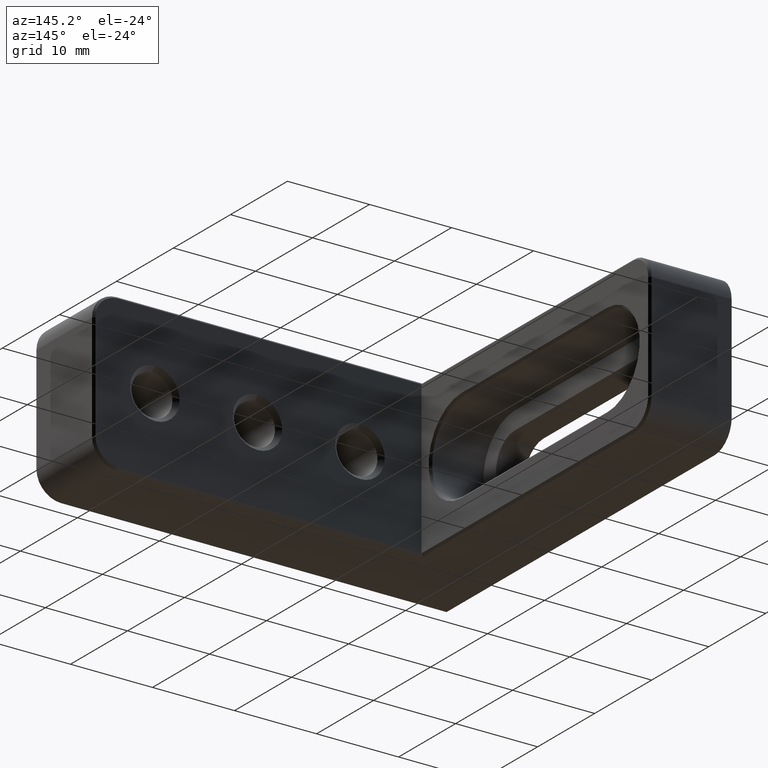
[diagram: clean part render]
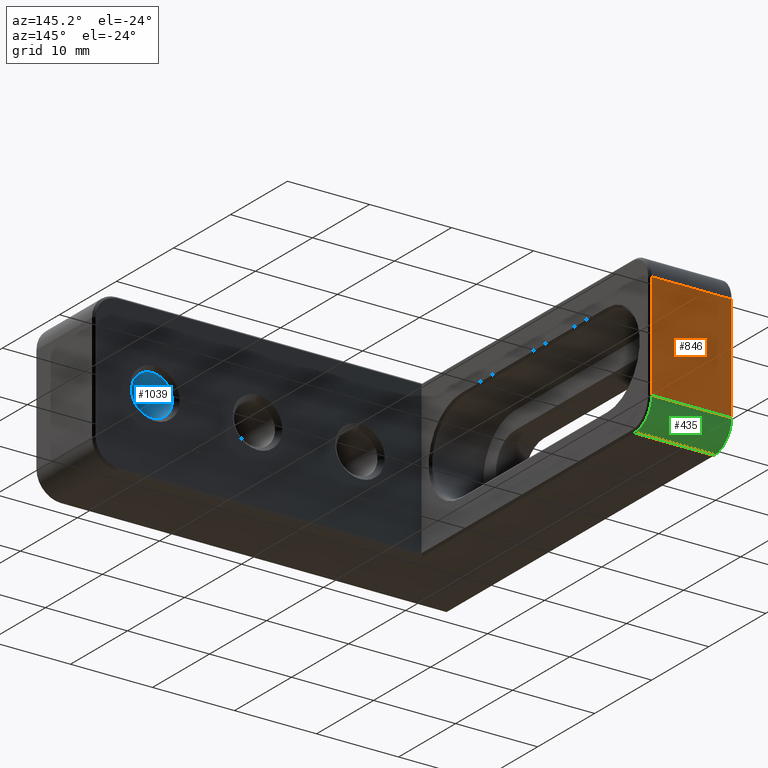
[diagram: same view with three faces highlighted in distinct colors, each labeled with its STEP entity id]
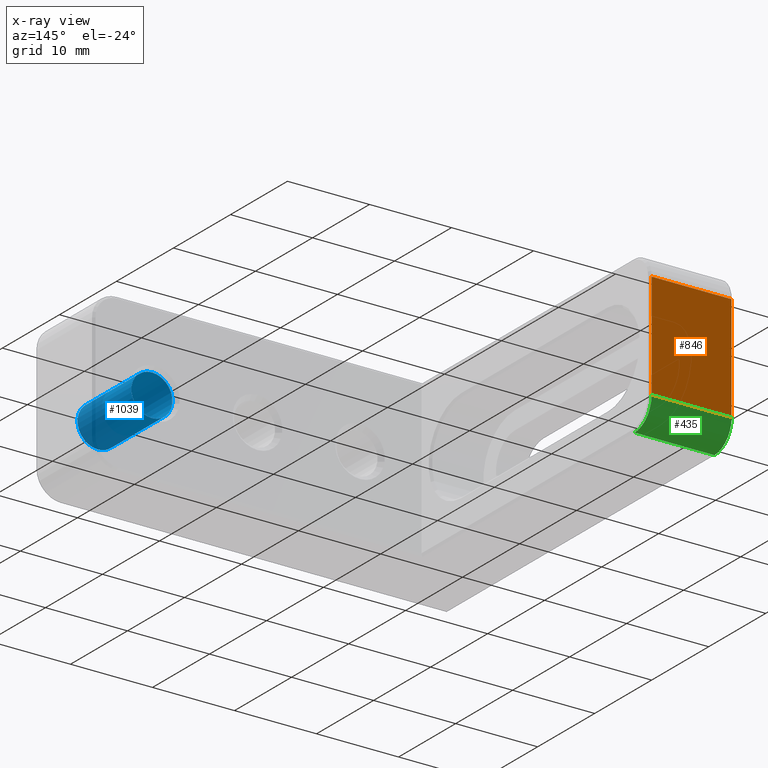
[diagram: x-ray of the same camera — body ghosted, the three highlighted faces saturated]
A machine part, auxiliary view with three faces highlighted in distinct colors.
The next image is the same camera in x-ray (body ghosted, the three faces saturated) — at least one of them is partly hidden behind the body in this view.
Their STEP definitions:

[orange] entity #846 — the highlighted planar face has unit normal (0, 1, 0).
#34 = LINE ( 'NONE', #981, #333 ) ;
#41 = EDGE_CURVE ( 'NONE', #928, #63, #167, .T. ) ;
#48 = CARTESIAN_POINT ( 'NONE',  ( -24.99999999999999289, 50.00000000000000000, 6.500000000000005329 ) ) ;
#63 = VERTEX_POINT ( 'NONE', #48 ) ;
#64 = LINE ( 'NONE', #444, #224 ) ;
#162 = EDGE_CURVE ( 'NONE', #63, #735, #34, .T. ) ;
#165 = VERTEX_POINT ( 'NONE', #1081 ) ;
#167 = LINE ( 'NONE', #272, #952 ) ;
#186 = CARTESIAN_POINT ( 'NONE',  ( -24.99999999999999289, 50.00000000000000000, -6.499999999999998224 ) ) ;
#224 = VECTOR ( 'NONE', #612, 1000.000000000000000 ) ;
#272 = CARTESIAN_POINT ( 'NONE',  ( -24.99999999999999289, 50.00000000000000000, -9.499999999999998224 ) ) ;
#275 = ORIENTED_EDGE ( 'NONE', *, *, #664, .T. ) ;
#288 = CARTESIAN_POINT ( 'NONE',  ( -24.99999999999999289, 50.00000000000000000, -6.499999999999998224 ) ) ;
#333 = VECTOR ( 'NONE', #1068, 1000.000000000000000 ) ;
#349 = ORIENTED_EDGE ( 'NONE', *, *, #711, .T. ) ;
#401 = ORIENTED_EDGE ( 'NONE', *, *, #41, .T. ) ;
#431 = CARTESIAN_POINT ( 'NONE',  ( -15.25000000000000000, 50.00000000000000000, 6.500000000000005329 ) ) ;
#444 = CARTESIAN_POINT ( 'NONE',  ( -15.25000000000000178, 50.00000000000000000, -6.499999999999998224 ) ) ;
#453 = AXIS2_PLACEMENT_3D ( 'NONE', #1006, #913, #901 ) ;
#533 = FACE_OUTER_BOUND ( 'NONE', #900, .T. ) ;
#573 = LINE ( 'NONE', #288, #906 ) ;
#612 = DIRECTION ( 'NONE',  ( -9.130123557772667102E-17, 0.000000000000000000, -1.000000000000000000 ) ) ;
#651 = DIRECTION ( 'NONE',  ( 0.000000000000000000, 0.000000000000000000, 1.000000000000000000 ) ) ;
#664 = EDGE_CURVE ( 'NONE', #735, #165, #64, .T. ) ;
#685 = DIRECTION ( 'NONE',  ( -1.000000000000000000, 0.000000000000000000, 0.000000000000000000 ) ) ;
#711 = EDGE_CURVE ( 'NONE', #165, #928, #573, .T. ) ;
#719 = ORIENTED_EDGE ( 'NONE', *, *, #162, .T. ) ;
#735 = VERTEX_POINT ( 'NONE', #431 ) ;
#846 = ADVANCED_FACE ( 'NONE', ( #533 ), #1208, .T. ) ;
#900 = EDGE_LOOP ( 'NONE', ( #719, #275, #349, #401 ) ) ;
#901 = DIRECTION ( 'NONE',  ( 0.000000000000000000, -0.000000000000000000, 1.000000000000000000 ) ) ;
#906 = VECTOR ( 'NONE', #685, 1000.000000000000000 ) ;
#913 = DIRECTION ( 'NONE',  ( 0.000000000000000000, 1.000000000000000000, 0.000000000000000000 ) ) ;
#928 = VERTEX_POINT ( 'NONE', #186 ) ;
#952 = VECTOR ( 'NONE', #651, 1000.000000000000000 ) ;
#981 = CARTESIAN_POINT ( 'NONE',  ( -14.99999999999999289, 50.00000000000000000, 6.500000000000005329 ) ) ;
#1006 = CARTESIAN_POINT ( 'NONE',  ( 0.000000000000000000, 50.00000000000000000, 0.000000000000000000 ) ) ;
#1068 = DIRECTION ( 'NONE',  ( 1.000000000000000000, -0.000000000000000000, 0.000000000000000000 ) ) ;
#1081 = CARTESIAN_POINT ( 'NONE',  ( -15.25000000000000178, 50.00000000000000000, -6.499999999999998224 ) ) ;
#1208 = PLANE ( 'NONE',  #453 ) ;

[blue] entity #1039 — the highlighted cylindrical surface (bore or boss wall) has radius 2.5 mm, axis along (-0, 1, -0).
#37 = CARTESIAN_POINT ( 'NONE',  ( 17.50000000000001066, 9.474999999999974776, 2.499999999999988454 ) ) ;
#96 = ORIENTED_EDGE ( 'NONE', *, *, #959, .F. ) ;
#109 = AXIS2_PLACEMENT_3D ( 'NONE', #1223, #1028, #933 ) ;
#206 = DIRECTION ( 'NONE',  ( -0.000000000000000000, 1.000000000000000000, -0.000000000000000000 ) ) ;
#241 = VERTEX_POINT ( 'NONE', #37 ) ;
#268 = FACE_OUTER_BOUND ( 'NONE', #717, .T. ) ;
#420 = EDGE_LOOP ( 'NONE', ( #466 ) ) ;
#423 = CIRCLE ( 'NONE', #1218, 2.499999999999988454 ) ;
#432 = AXIS2_PLACEMENT_3D ( 'NONE', #1133, #206, #574 ) ;
#466 = ORIENTED_EDGE ( 'NONE', *, *, #1062, .T. ) ;
#502 = DIRECTION ( 'NONE',  ( -0.000000000000000000, 1.000000000000000000, -0.000000000000000000 ) ) ;
#505 = DIRECTION ( 'NONE',  ( 0.000000000000000000, 0.000000000000000000, 1.000000000000000000 ) ) ;
#574 = DIRECTION ( 'NONE',  ( 0.000000000000000000, 0.000000000000000000, 1.000000000000000000 ) ) ;
#598 = CARTESIAN_POINT ( 'NONE',  ( 17.50000000000001066, 9.474999999999974776, 0.000000000000000000 ) ) ;
#647 = FACE_OUTER_BOUND ( 'NONE', #420, .T. ) ;
#717 = EDGE_LOOP ( 'NONE', ( #96 ) ) ;
#808 = CIRCLE ( 'NONE', #432, 2.499999999999998668 ) ;
#853 = CYLINDRICAL_SURFACE ( 'NONE', #109, 2.499999999999993339 ) ;
#933 = DIRECTION ( 'NONE',  ( 0.000000000000000000, 0.000000000000000000, 1.000000000000000000 ) ) ;
#959 = EDGE_CURVE ( 'NONE', #988, #988, #808, .T. ) ;
#988 = VERTEX_POINT ( 'NONE', #1097 ) ;
#1028 = DIRECTION ( 'NONE',  ( -0.000000000000000000, 1.000000000000000000, -0.000000000000000000 ) ) ;
#1039 = ADVANCED_FACE ( 'NONE', ( #268, #647 ), #853, .F. ) ;
#1062 = EDGE_CURVE ( 'NONE', #241, #241, #423, .T. ) ;
#1097 = CARTESIAN_POINT ( 'NONE',  ( 17.50000000000001066, -1.734723475976807094E-15, 2.499999999999998668 ) ) ;
#1133 = CARTESIAN_POINT ( 'NONE',  ( 17.50000000000001066, -1.734723475976807094E-15, 0.000000000000000000 ) ) ;
#1218 = AXIS2_PLACEMENT_3D ( 'NONE', #598, #502, #505 ) ;
#1223 = CARTESIAN_POINT ( 'NONE',  ( 17.50000000000001066, 10.00000000000000000, 0.000000000000000000 ) ) ;

[green] entity #435 — the highlighted cylindrical surface (edge-blend (fillet) strip) has radius 3 mm, axis along (1, 0, 0).
#53 = CARTESIAN_POINT ( 'NONE',  ( -15.25000000000000178, 47.00000000000000000, -9.499999999999998224 ) ) ;
#100 = CARTESIAN_POINT ( 'NONE',  ( 0.000000000000000000, 47.00000000000000000, -6.499999999999998224 ) ) ;
#165 = VERTEX_POINT ( 'NONE', #1081 ) ;
#186 = CARTESIAN_POINT ( 'NONE',  ( -24.99999999999999289, 50.00000000000000000, -6.499999999999998224 ) ) ;
#276 = AXIS2_PLACEMENT_3D ( 'NONE', #1143, #764, #1137 ) ;
#285 = FACE_OUTER_BOUND ( 'NONE', #611, .T. ) ;
#288 = CARTESIAN_POINT ( 'NONE',  ( -24.99999999999999289, 50.00000000000000000, -6.499999999999998224 ) ) ;
#312 = DIRECTION ( 'NONE',  ( -1.000000000000000000, -0.000000000000000000, 1.826024711554533420E-16 ) ) ;
#330 = DIRECTION ( 'NONE',  ( 1.000000000000000000, -0.000000000000000000, -0.000000000000000000 ) ) ;
#362 = ORIENTED_EDGE ( 'NONE', *, *, #688, .T. ) ;
#387 = CIRCLE ( 'NONE', #789, 3.000000000000000000 ) ;
#435 = ADVANCED_FACE ( 'NONE', ( #285 ), #565, .T. ) ;
#443 = ORIENTED_EDGE ( 'NONE', *, *, #711, .F. ) ;
#473 = CIRCLE ( 'NONE', #276, 3.000000000000000000 ) ;
#477 = DIRECTION ( 'NONE',  ( 1.000000000000000000, 0.000000000000000000, 0.000000000000000000 ) ) ;
#546 = CARTESIAN_POINT ( 'NONE',  ( -14.99999999999999467, 47.00000000000000000, -9.499999999999998224 ) ) ;
#565 = CYLINDRICAL_SURFACE ( 'NONE', #800, 3.000000000000000000 ) ;
#573 = LINE ( 'NONE', #288, #906 ) ;
#611 = EDGE_LOOP ( 'NONE', ( #443, #362, #727, #1229 ) ) ;
#624 = VECTOR ( 'NONE', #330, 1000.000000000000000 ) ;
#685 = DIRECTION ( 'NONE',  ( -1.000000000000000000, 0.000000000000000000, 0.000000000000000000 ) ) ;
#688 = EDGE_CURVE ( 'NONE', #165, #801, #473, .T. ) ;
#711 = EDGE_CURVE ( 'NONE', #165, #928, #573, .T. ) ;
#725 = LINE ( 'NONE', #546, #624 ) ;
#727 = ORIENTED_EDGE ( 'NONE', *, *, #791, .F. ) ;
#764 = DIRECTION ( 'NONE',  ( -1.000000000000000000, 0.000000000000000000, 0.000000000000000000 ) ) ;
#777 = DIRECTION ( 'NONE',  ( 0.000000000000000000, 0.000000000000000000, -1.000000000000000000 ) ) ;
#789 = AXIS2_PLACEMENT_3D ( 'NONE', #887, #312, #976 ) ;
#791 = EDGE_CURVE ( 'NONE', #1230, #801, #725, .T. ) ;
#800 = AXIS2_PLACEMENT_3D ( 'NONE', #100, #477, #777 ) ;
#801 = VERTEX_POINT ( 'NONE', #53 ) ;
#887 = CARTESIAN_POINT ( 'NONE',  ( -24.99999999999999289, 47.00000000000000000, -6.499999999999998224 ) ) ;
#906 = VECTOR ( 'NONE', #685, 1000.000000000000000 ) ;
#928 = VERTEX_POINT ( 'NONE', #186 ) ;
#976 = DIRECTION ( 'NONE',  ( 0.000000000000000000, 0.000000000000000000, -1.000000000000000000 ) ) ;
#1081 = CARTESIAN_POINT ( 'NONE',  ( -15.25000000000000178, 50.00000000000000000, -6.499999999999998224 ) ) ;
#1085 = EDGE_CURVE ( 'NONE', #928, #1230, #387, .T. ) ;
#1104 = CARTESIAN_POINT ( 'NONE',  ( -24.99999999999999289, 47.00000000000000000, -9.499999999999998224 ) ) ;
#1137 = DIRECTION ( 'NONE',  ( 0.000000000000000000, 0.000000000000000000, 1.000000000000000000 ) ) ;
#1143 = CARTESIAN_POINT ( 'NONE',  ( -15.25000000000000178, 47.00000000000000000, -6.499999999999998224 ) ) ;
#1229 = ORIENTED_EDGE ( 'NONE', *, *, #1085, .F. ) ;
#1230 = VERTEX_POINT ( 'NONE', #1104 ) ;